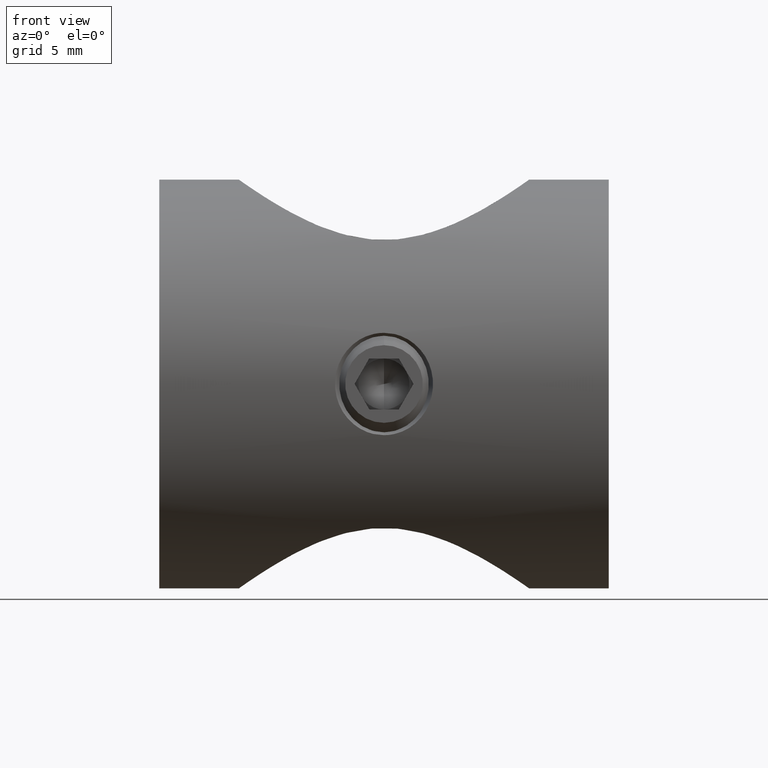
[diagram: clean part render]
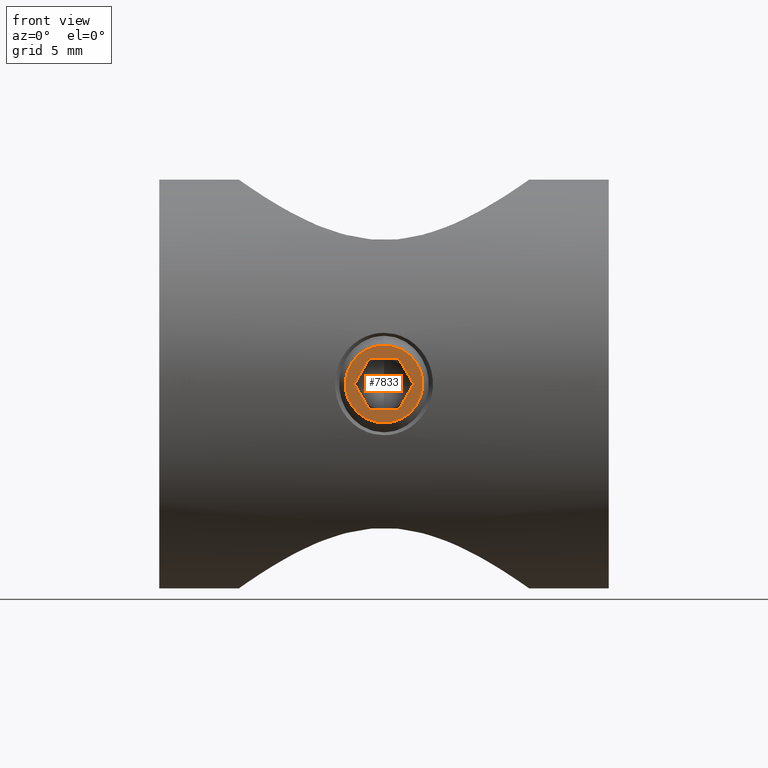
[diagram: same view with one face highlighted and labeled with its STEP entity id]
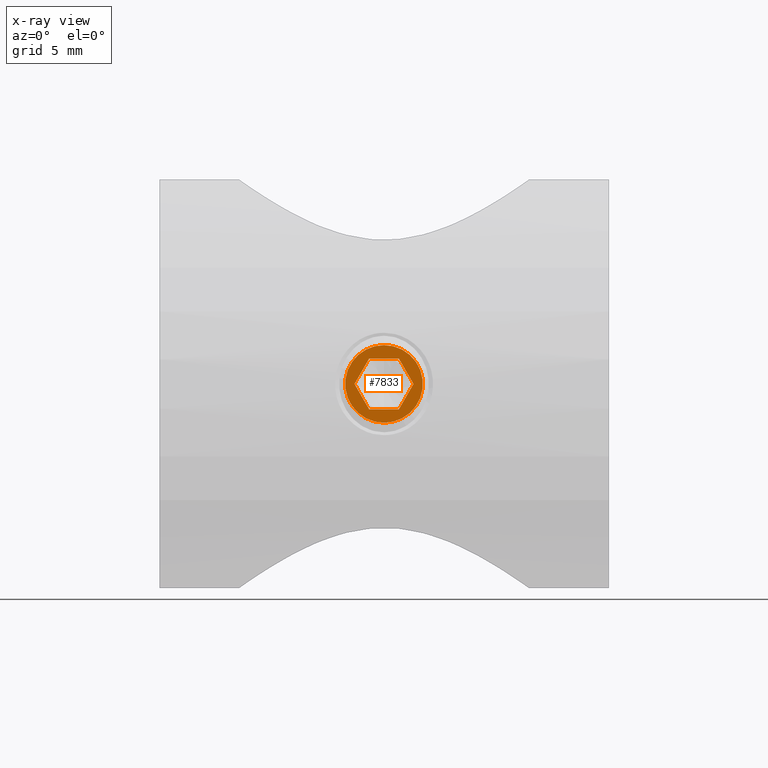
[diagram: x-ray of the same camera — body ghosted, the highlighted face saturated]
A machine part, front view. The second image highlights one B-rep face of the part: STEP entity #7833.
The next image is the same camera in x-ray: the body ghosted, the highlighted face saturated — about 0% of this face is hidden behind the body in this view.
In plain terms, the highlighted planar face has unit normal (0, -1, 0).
Its self-contained STEP definition (entity closure, byte-faithful):
#212 = DIRECTION ( 'NONE',  ( 0.000000000000000000, 1.000000000000000000, 0.000000000000000000 ) ) ;
#432 = ORIENTED_EDGE ( 'NONE', *, *, #3490, .F. ) ;
#1054 = ORIENTED_EDGE ( 'NONE', *, *, #2274, .T. ) ;
#1211 = ORIENTED_EDGE ( 'NONE', *, *, #1771, .F. ) ;
#1670 = FACE_BOUND ( 'NONE', #9380, .T. ) ;
#1771 = EDGE_CURVE ( 'NONE', #4687, #2110, #3172, .T. ) ;
#1789 = DIRECTION ( 'NONE',  ( 1.000000000000000000, 0.000000000000000000, 0.000000000000000000 ) ) ;
#1800 = ORIENTED_EDGE ( 'NONE', *, *, #2737, .F. ) ;
#2110 = VERTEX_POINT ( 'NONE', #2871 ) ;
#2274 = EDGE_CURVE ( 'NONE', #3254, #7700, #12948, .T. ) ;
#2330 = AXIS2_PLACEMENT_3D ( 'NONE', #12617, #10556, #7910 ) ;
#2737 = EDGE_CURVE ( 'NONE', #14120, #5755, #12047, .T. ) ;
#2871 = CARTESIAN_POINT ( 'NONE',  ( 3.000000000000000000, 0.7216878364870330520, 1.250000000000000444 ) ) ;
#3172 = LINE ( 'NONE', #11589, #10181 ) ;
#3254 = VERTEX_POINT ( 'NONE', #13026 ) ;
#3412 = EDGE_CURVE ( 'NONE', #2110, #4161, #13510, .T. ) ;
#3490 = EDGE_CURVE ( 'NONE', #4161, #14120, #14974, .T. ) ;
#3544 = DIRECTION ( 'NONE',  ( 0.000000000000000000, -0.5000000000000001110, -0.8660254037844385966 ) ) ;
#4161 = VERTEX_POINT ( 'NONE', #6666 ) ;
#4319 = AXIS2_PLACEMENT_3D ( 'NONE', #11237, #8868, #10144 ) ;
#4380 = ORIENTED_EDGE ( 'NONE', *, *, #14112, .F. ) ;
#4687 = VERTEX_POINT ( 'NONE', #9404 ) ;
#4928 = CARTESIAN_POINT ( 'NONE',  ( 3.000000000000000000, -0.7216878364870322748, -1.249999999999999556 ) ) ;
#5172 = DIRECTION ( 'NONE',  ( 0.000000000000000000, 0.000000000000000000, -1.000000000000000000 ) ) ;
#5591 = AXIS2_PLACEMENT_3D ( 'NONE', #7641, #1789, #5172 ) ;
#5755 = VERTEX_POINT ( 'NONE', #4928 ) ;
#5911 = DIRECTION ( 'NONE',  ( 0.000000000000000000, -0.4999999999999999445, 0.8660254037844387076 ) ) ;
#6323 = DIRECTION ( 'NONE',  ( 0.000000000000000000, 0.4999999999999999445, 0.8660254037844387076 ) ) ;
#6662 = EDGE_CURVE ( 'NONE', #8866, #4687, #9054, .T. ) ;
#6666 = CARTESIAN_POINT ( 'NONE',  ( 3.000000000000000000, -0.7216878364870317197, 1.250000000000000222 ) ) ;
#6849 = VECTOR ( 'NONE', #6323, 999.9999999999998863 ) ;
#7123 = CARTESIAN_POINT ( 'NONE',  ( 3.000000000000000000, -0.7216878364870317197, 1.250000000000000222 ) ) ;
#7244 = CARTESIAN_POINT ( 'NONE',  ( 3.000000000000000000, 0.7216878364870333851, -1.249999999999999556 ) ) ;
#7539 = DIRECTION ( 'NONE',  ( 0.000000000000000000, 0.4999999999999996114, -0.8660254037844388186 ) ) ;
#7622 = VECTOR ( 'NONE', #7539, 1000.000000000000114 ) ;
#7641 = CARTESIAN_POINT ( 'NONE',  ( 3.000000000000000000, 0.000000000000000000, 0.000000000000000000 ) ) ;
#7700 = VERTEX_POINT ( 'NONE', #14372 ) ;
#7833 = ADVANCED_FACE ( 'NONE', ( #1670, #10859 ), #12234, .T. ) ;
#7910 = DIRECTION ( 'NONE',  ( 0.000000000000000000, 0.000000000000000000, -1.000000000000000000 ) ) ;
#8382 = VECTOR ( 'NONE', #212, 1000.000000000000000 ) ;
#8583 = CARTESIAN_POINT ( 'NONE',  ( 3.000000000000000000, 0.7216878364870333851, -1.249999999999999556 ) ) ;
#8866 = VERTEX_POINT ( 'NONE', #7244 ) ;
#8868 = DIRECTION ( 'NONE',  ( 1.000000000000000000, 0.000000000000000000, 0.000000000000000000 ) ) ;
#9054 = LINE ( 'NONE', #8583, #6849 ) ;
#9157 = EDGE_LOOP ( 'NONE', ( #1054, #11827 ) ) ;
#9380 = EDGE_LOOP ( 'NONE', ( #432, #11404, #1211, #13662, #4380, #1800 ) ) ;
#9404 = CARTESIAN_POINT ( 'NONE',  ( 3.000000000000000000, 1.443375672974065438, -6.564775772603788776E-17 ) ) ;
#9516 = CIRCLE ( 'NONE', #4319, 1.900000000000000133 ) ;
#9886 = CARTESIAN_POINT ( 'NONE',  ( 3.000000000000000000, 0.7216878364870330520, 1.250000000000000444 ) ) ;
#10144 = DIRECTION ( 'NONE',  ( 0.000000000000000000, 0.000000000000000000, -1.000000000000000000 ) ) ;
#10181 = VECTOR ( 'NONE', #5911, 1000.000000000000000 ) ;
#10556 = DIRECTION ( 'NONE',  ( 1.000000000000000000, 0.000000000000000000, 0.000000000000000000 ) ) ;
#10740 = VECTOR ( 'NONE', #3544, 1000.000000000000000 ) ;
#10859 = FACE_OUTER_BOUND ( 'NONE', #9157, .T. ) ;
#11045 = CARTESIAN_POINT ( 'NONE',  ( 3.000000000000000000, -1.443375672974063884, 6.665964466617865498E-16 ) ) ;
#11171 = DIRECTION ( 'NONE',  ( 0.000000000000000000, -1.000000000000000000, -1.502314598737159031E-16 ) ) ;
#11237 = CARTESIAN_POINT ( 'NONE',  ( 3.000000000000000000, 0.000000000000000000, 0.000000000000000000 ) ) ;
#11404 = ORIENTED_EDGE ( 'NONE', *, *, #3412, .F. ) ;
#11439 = EDGE_CURVE ( 'NONE', #7700, #3254, #9516, .T. ) ;
#11535 = LINE ( 'NONE', #13131, #8382 ) ;
#11589 = CARTESIAN_POINT ( 'NONE',  ( 3.000000000000000000, 1.443375672974065438, -6.564775772603788776E-17 ) ) ;
#11827 = ORIENTED_EDGE ( 'NONE', *, *, #11439, .T. ) ;
#11856 = VECTOR ( 'NONE', #11171, 1000.000000000000000 ) ;
#12047 = LINE ( 'NONE', #11045, #7622 ) ;
#12234 = PLANE ( 'NONE',  #5591 ) ;
#12617 = CARTESIAN_POINT ( 'NONE',  ( 3.000000000000000000, 0.000000000000000000, 0.000000000000000000 ) ) ;
#12948 = CIRCLE ( 'NONE', #2330, 1.900000000000000133 ) ;
#13026 = CARTESIAN_POINT ( 'NONE',  ( 3.000000000000000000, 0.000000000000000000, 1.900000000000000133 ) ) ;
#13131 = CARTESIAN_POINT ( 'NONE',  ( 3.000000000000000000, -0.7216878364870322748, -1.249999999999999556 ) ) ;
#13281 = CARTESIAN_POINT ( 'NONE',  ( 3.000000000000000000, -1.443375672974064106, 6.505213034913026604E-16 ) ) ;
#13510 = LINE ( 'NONE', #9886, #11856 ) ;
#13662 = ORIENTED_EDGE ( 'NONE', *, *, #6662, .F. ) ;
#14112 = EDGE_CURVE ( 'NONE', #5755, #8866, #11535, .T. ) ;
#14120 = VERTEX_POINT ( 'NONE', #13281 ) ;
#14372 = CARTESIAN_POINT ( 'NONE',  ( 3.000000000000000000, 2.694222958124177006E-16, -1.900000000000000133 ) ) ;
#14974 = LINE ( 'NONE', #7123, #10740 ) ;